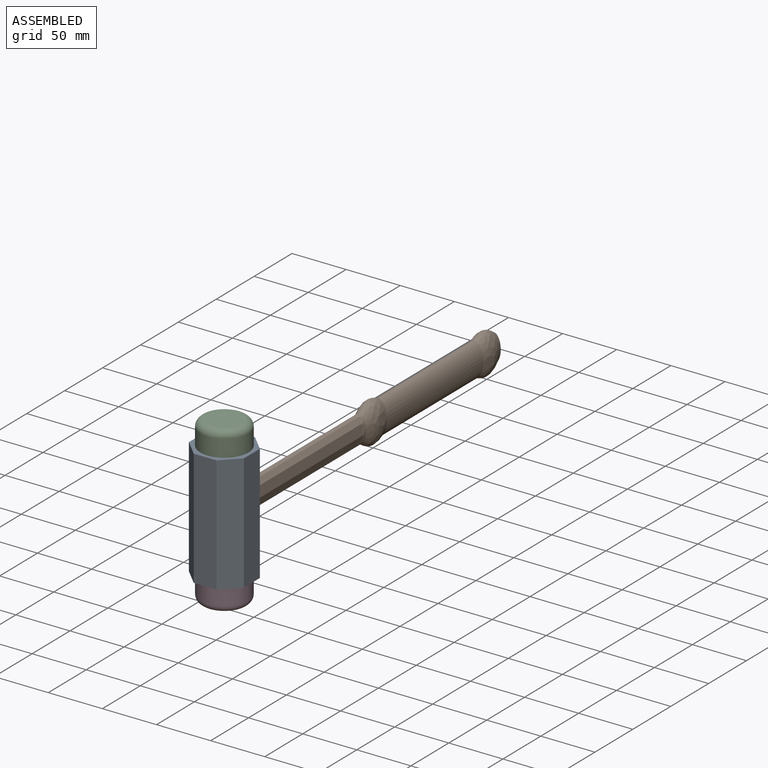
[diagram: assembled view]
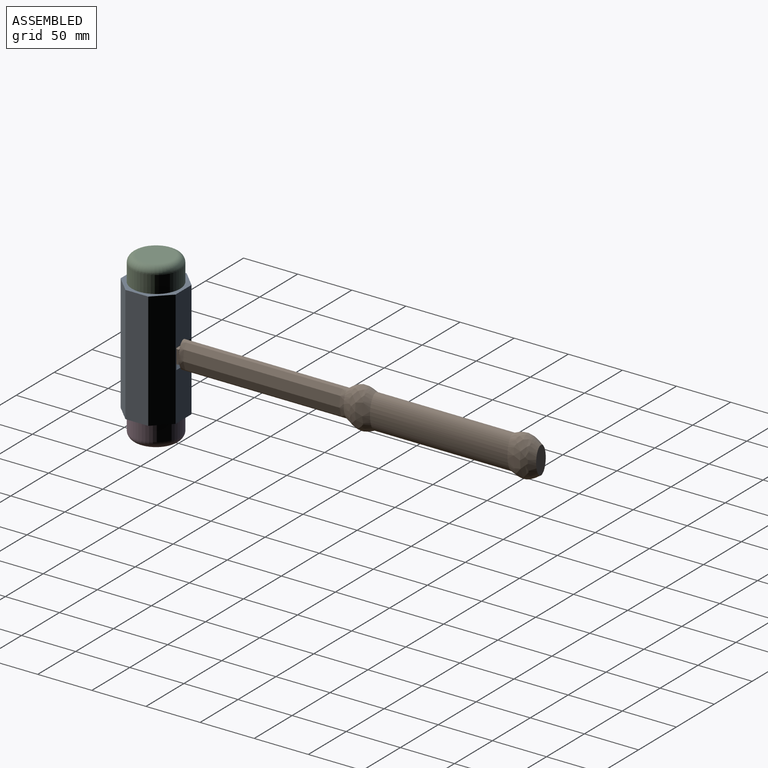
[diagram: assembled view, second angle]
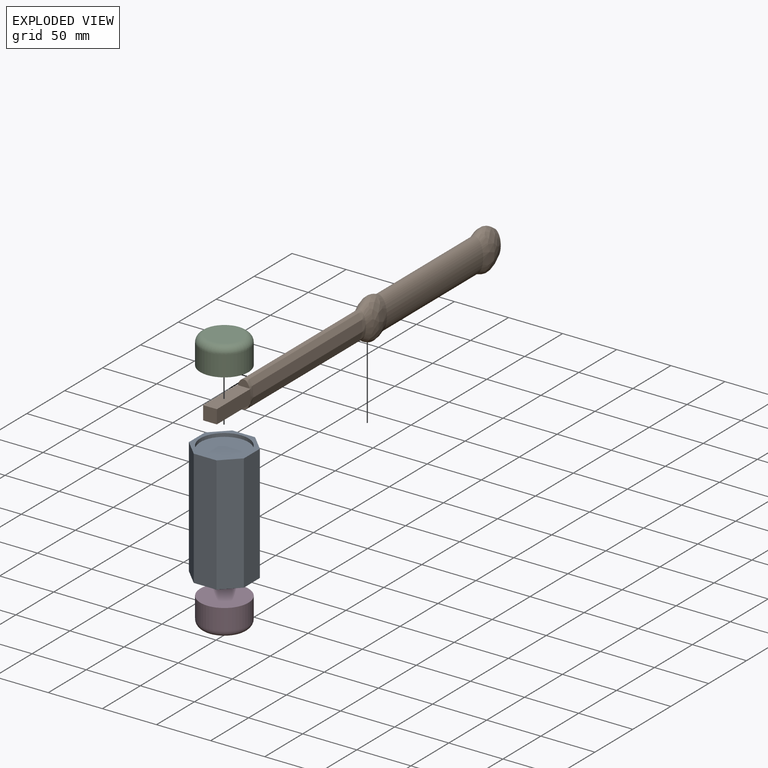
[diagram: exploded view]
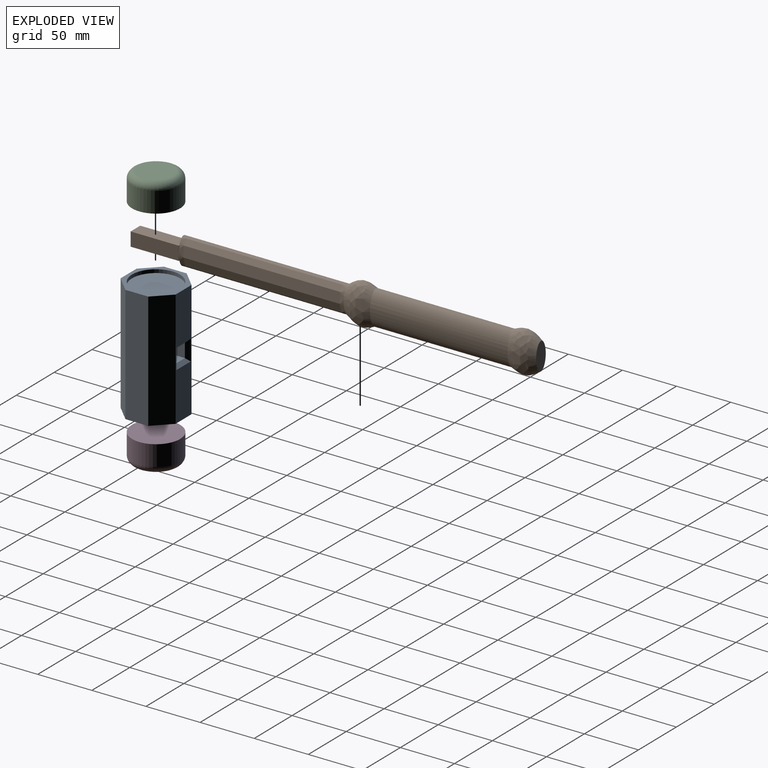
[diagram: exploded view, second angle]
ASSEMBLY  parts=4 mates=7
PART A: 23 faces, bbox 50.8x108x50.8 mm
  f0: plane 107.95x21.04mm, normal (0,0,-1), area 1908.6mm2, adj f5,f6,f8,f9,f19,f20,f21,f22
  f1: plane 107.95x14.88mm, normal (0.71,0,0.71), area 2271.5mm2, adj f2,f7,f8,f9
  f2: plane 107.95x21.04mm, normal (0,0,1), area 2271.5mm2, adj f1,f3,f8,f9
  f3: plane 107.95x14.88mm, normal (-0.71,0,0.71), area 2271.5mm2, adj f2,f4,f8,f9
  f4: plane 107.95x21.04mm, normal (-1,0,0), area 2271.5mm2, adj f3,f5,f8,f9
  f5: plane 107.95x14.88mm, normal (-0.71,0,-0.71), area 2271.5mm2, adj f0,f4,f8,f9
  f6: plane 107.95x14.88mm, normal (0.71,0,-0.71), area 2271.5mm2, adj f0,f7,f8,f9
  f7: plane 107.95x21.04mm, normal (1,0,0), area 2271.5mm2, adj f1,f6,f8,f9
  f8: plane 50.8x50.8mm, normal (0,-1,0), area 586.1mm2, adj f0,f1,f2,f3,f4,f5,f6,f7
  f9: plane 50.8x50.8mm, normal (0,1,0), area 586.1mm2, adj f0,f1,f2,f3,f4,f5,f6,f7
  f10: cylinder r=22.23mm len=44.45mm, axis (0,-1,0), area 443.4mm2, adj f8,f11
  f11: plane 44.45x44.45mm, normal (0,-1,0), area 1551.8mm2, adj f10
  f12: cylinder r=22.23mm len=44.45mm, axis (0,1,0), area 443.4mm2, adj f9,f13
  f13: plane 44.45x44.45mm, normal (0,1,0), area 1551.8mm2, adj f12
  f14: plane 41.28x12.7mm, normal (-1,0,0), area 524.2mm2, adj f15,f17,f18,f19
  f15: plane 41.28x12.7mm, normal (0,1,0), area 524.2mm2, adj f14,f16,f18,f20
  f16: plane 41.28x12.7mm, normal (1,0,0), area 524.2mm2, adj f15,f17,f18,f22
  f17: plane 41.28x12.7mm, normal (0,-1,0), area 524.2mm2, adj f14,f16,f18,f21
  f18: plane 12.7x12.7mm, normal (0,0,-1), area 161.3mm2, adj f14,f15,f16,f17
  f19: plane 19.05x3.18mm, normal (-0.71,0,-0.71), area 71.3mm2, adj f0,f14,f20,f21
  f20: plane 19.05x3.18mm, normal (0,0.71,-0.71), area 71.3mm2, adj f0,f15,f19,f22
  f21: plane 19.05x3.18mm, normal (0,-0.71,-0.71), area 71.3mm2, adj f0,f17,f19,f22
  f22: plane 19.05x3.18mm, normal (0.71,0,-0.71), area 71.3mm2, adj f0,f16,f20,f21
PART B: 16 faces, bbox 21.6x374.8x43 mm
  f0: plane 11.05x6.37mm, normal (0,1,0), area 49.5mm2, adj f5,f13
  f1: extruded ~127x31.75mm, area 9766.9mm2, adj f3,f4
  f2: plane 25.4x12.7mm, normal (0,-1,0), area 253.3mm2, adj f3
  f3: bspline ~42.82x25.4mm, area 2201.5mm2, adj f1,f2
  f4: bspline ~42.82x25.4mm, area 2201.5mm2, adj f1,f5
  f5: extruded ~152.4x25.4mm, area 9377.1mm2, adj f0,f4,f6,f7,f8,f9,f10
  f6: plane 11.05x6.37mm, normal (0,1,0), area 49.5mm2, adj f5,f15
  f7: plane 6.53x1.03mm, normal (0,-1,0), area 1.7mm2, adj f5,f13,f14
  f8: plane 6.52x1.03mm, normal (0,-1,0), area 1.7mm2, adj f5,f14,f15
  f9: plane 6.53x1.03mm, normal (0,-1,0), area 1.7mm2, adj f5,f12,f15
  f10: plane 6.52x1.03mm, normal (0,-1,0), area 1.7mm2, adj f5,f12,f13
  f11: plane 12.7x12.7mm, normal (0,1,0), area 161.3mm2, adj f12,f13,f14,f15
  f12: plane 44.45x12.7mm, normal (-1,0,0), area 564.5mm2, adj f9,f10,f11,f13,f15
  f13: plane 44.45x12.7mm, normal (0,0,1), area 564.5mm2, adj f0,f7,f10,f11,f12,f14
  f14: plane 44.45x12.7mm, normal (1,0,0), area 564.5mm2, adj f7,f8,f11,f13,f15
  f15: plane 44.45x12.7mm, normal (0,0,-1), area 564.5mm2, adj f6,f8,f9,f11,f12,f14
PART C: 4 faces, bbox 25.4x48.1x48.1 mm
  f0: plane 44.45x44.45mm, normal (1,0,0), area 1551.8mm2, adj f1
  f1: cylinder r=22.23mm len=44.45mm, axis (1,0,0), area 2660.2mm2, adj f0,f2
  f2: torus R=15.88mm, axis (1,0,0), area 1248.3mm2, adj f1,f3
  f3: plane 31.75x31.75mm, normal (-1,0,0), area 791.7mm2, adj f2
PART D: same geometry as C
PLACE A rot(axis=(0,0.71,-0.71),180deg) t=(-151.55,263.19,-57.65)mm
PLACE B rot(axis=(1,0,0),180deg) t=(-151.55,244.14,-57.65)mm
PLACE C rot(axis=(-0.58,0.58,0.58),120deg) t=(-151.55,263.19,-6.85)mm
PLACE D rot(axis=(0.58,-0.58,0.58),120deg) t=(-151.55,263.19,-108.45)mm
MATE planar B.f13 <-> A.f17  axis (0,0,-1) through (-151.55,266.36,-64)mm
MATE cylindrical C.f1 <-> A.f10  axis (0,0,-1) through (-151.55,263.19,-6.85)mm
MATE planar B.f12 <-> A.f14  axis (-1,0,0) through (-157.9,266.36,-57.65)mm
MATE fastened C.f1 <-> A.f10  axis (0,0,-1) through (-151.55,263.19,-6.85)mm
MATE fastened A.f10 <-> D.f1  axis (0,0,-1) through (-151.55,263.19,-108.45)mm
MATE cylindrical D.f1 <-> A.f10  axis (0,0,1) through (-151.55,263.19,-108.45)mm
MATE planar A.f18 <-> B.f11  axis (0,1,0) through (-151.55,244.14,-57.65)mm
